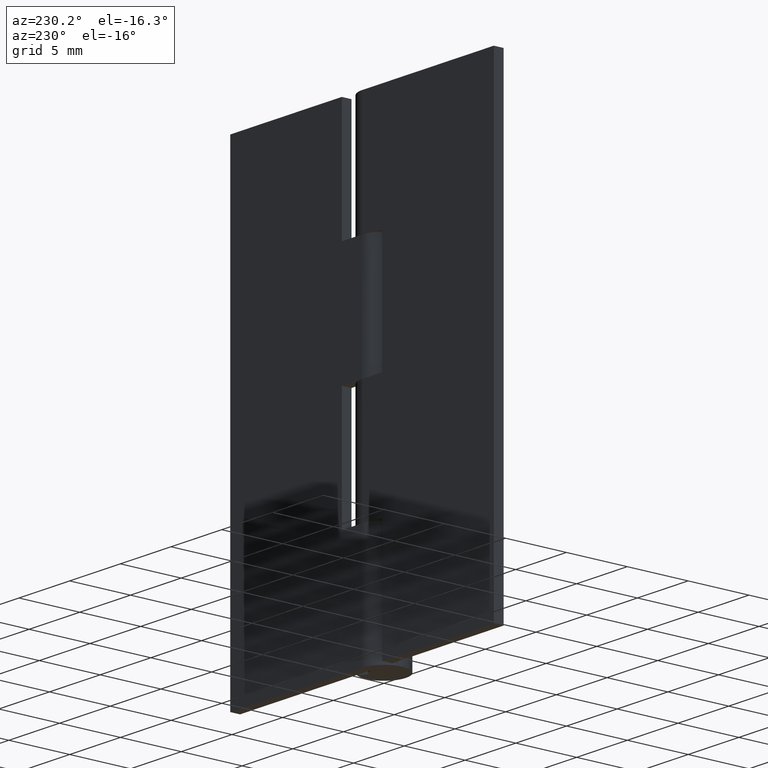
[diagram: clean part render]
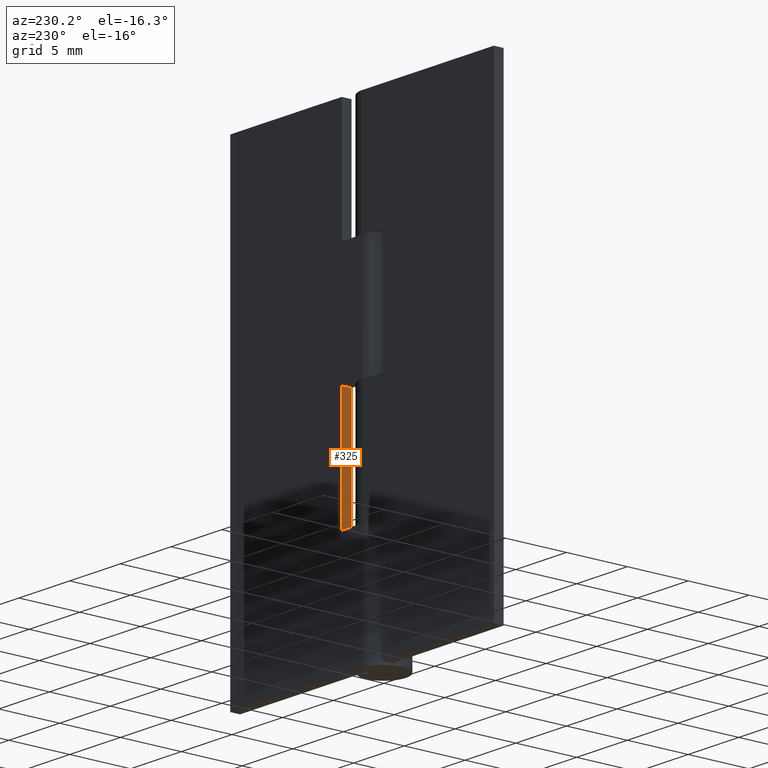
[diagram: same view with one face highlighted and labeled with its STEP entity id]
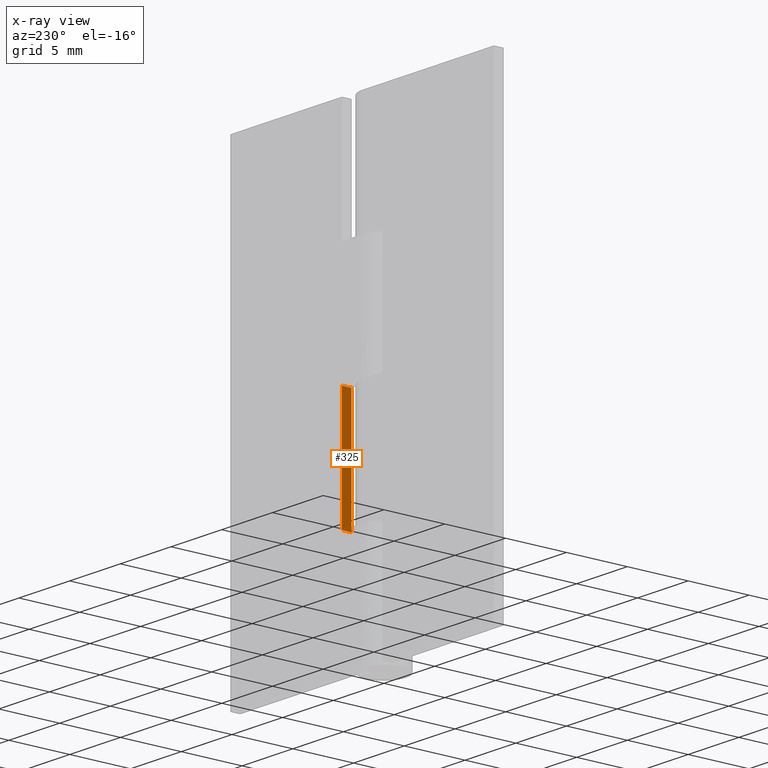
[diagram: x-ray of the same camera — body ghosted, the highlighted face saturated]
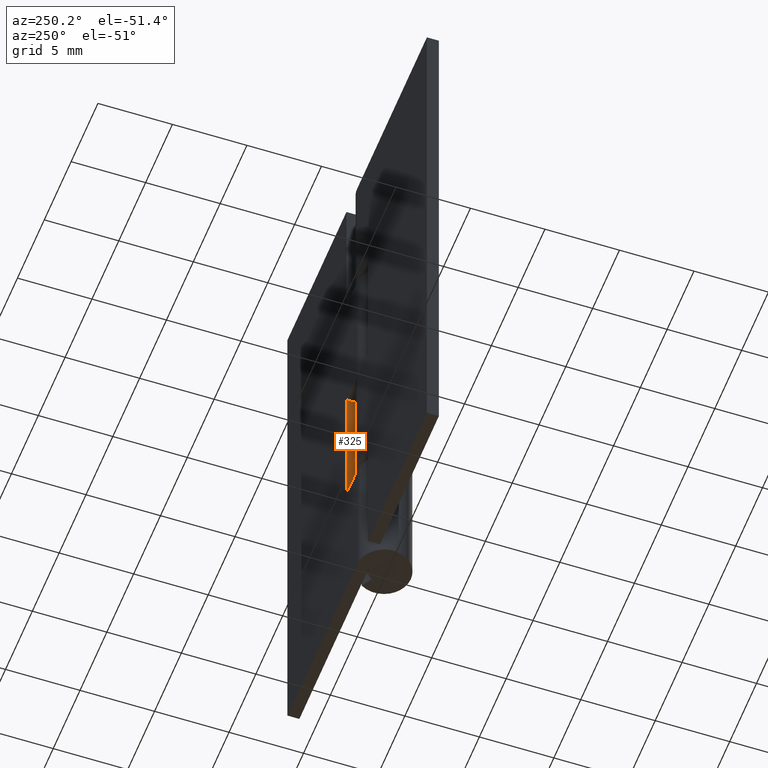
[diagram: same view with one face highlighted and labeled with its STEP entity id]
A machine part, auxiliary view. The second image highlights one B-rep face of the part: STEP entity #325.
The next image is the same camera in x-ray: the body ghosted, the highlighted face saturated — about 0% of this face is hidden behind the body in this view.
A second angle (auxiliary view) of the same face is appended — the face is thin or edge-on in the first view.
In plain terms, the highlighted face is a freeform B-spline surface patch.
Its self-contained STEP definition (entity closure, byte-faithful):
#155=CARTESIAN_POINT('',(2.0,1.799998999999940,19.0));
#156=VERTEX_POINT('',#155);
#164=CARTESIAN_POINT('',(2.0,1.0,19.0));
#165=VERTEX_POINT('',#164);
#166=CARTESIAN_POINT('',(2.0,1.0,19.0));
#167=CARTESIAN_POINT('',(2.0,1.799998999999940,19.0));
#168=QUASI_UNIFORM_CURVE('',1,(#166,#167),.UNSPECIFIED.,.F.,.U.);
#169=EDGE_CURVE('',#165,#156,#168,.T.);
#284=CARTESIAN_POINT('',(2.0,1.0,9.499999999999901));
#285=VERTEX_POINT('',#284);
#291=CARTESIAN_POINT('',(2.0,1.799998999999940,9.499999999999901));
#292=VERTEX_POINT('',#291);
#293=CARTESIAN_POINT('',(2.0,1.0,9.499999999999901));
#294=CARTESIAN_POINT('',(2.0,1.799998999999940,9.499999999999901));
#295=QUASI_UNIFORM_CURVE('',1,(#293,#294),.UNSPECIFIED.,.F.,.U.);
#296=EDGE_CURVE('',#285,#292,#295,.T.);
#306=CARTESIAN_POINT('',(2.0,0.960040051500556,9.025475018412738));
#307=CARTESIAN_POINT('',(2.0,0.960040051500556,19.474525236397021));
#308=CARTESIAN_POINT('',(2.0,1.839958969957029,9.025475018412738));
#309=CARTESIAN_POINT('',(2.0,1.839958969957029,19.474525236397021));
#310=B_SPLINE_SURFACE_WITH_KNOTS('',1,1,((#306,#308),(#307,#309)),.UNSPECIFIED.,.F.,.F.,.U.,(2,2),(2,2),(0.0,10.449050217984279),(0.041708334948495,0.958291687403247),.UNSPECIFIED.);
#311=CARTESIAN_POINT('',(2.0,1.0,9.499999999999901));
#312=CARTESIAN_POINT('',(2.0,1.0,19.0));
#313=QUASI_UNIFORM_CURVE('',1,(#311,#312),.UNSPECIFIED.,.F.,.U.);
#314=EDGE_CURVE('',#285,#165,#313,.T.);
#315=ORIENTED_EDGE('',*,*,#314,.T.);
#316=ORIENTED_EDGE('',*,*,#169,.T.);
#317=CARTESIAN_POINT('',(2.0,1.799998999999940,9.499999999999901));
#318=CARTESIAN_POINT('',(2.0,1.799998999999940,19.0));
#319=QUASI_UNIFORM_CURVE('',1,(#317,#318),.UNSPECIFIED.,.F.,.U.);
#320=EDGE_CURVE('',#292,#156,#319,.T.);
#321=ORIENTED_EDGE('',*,*,#320,.F.);
#322=ORIENTED_EDGE('',*,*,#296,.F.);
#323=EDGE_LOOP('',(#315,#316,#321,#322));
#324=FACE_OUTER_BOUND('',#323,.T.);
#325=ADVANCED_FACE('',(#324),#310,.T.);